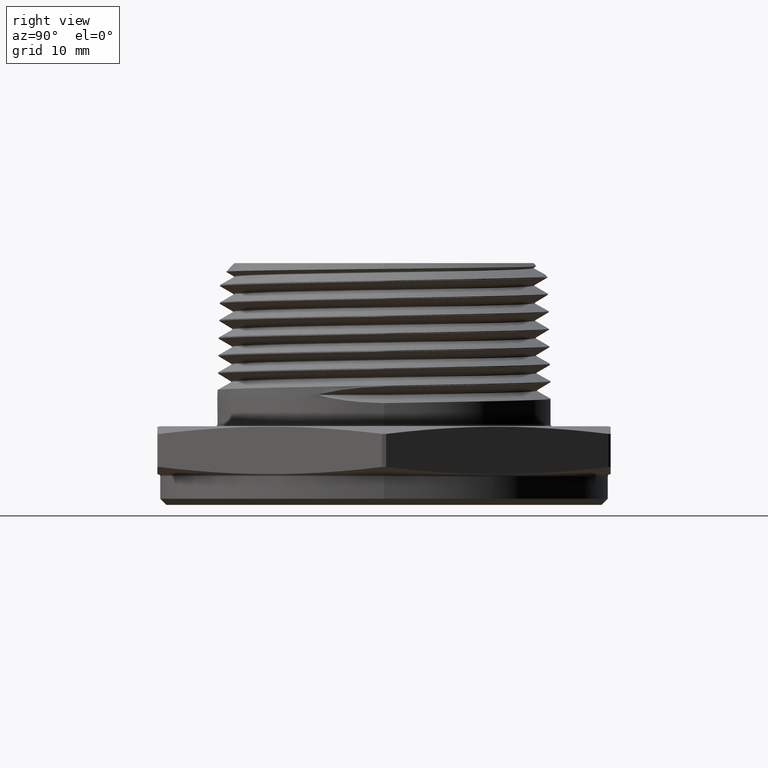
[diagram: clean part render]
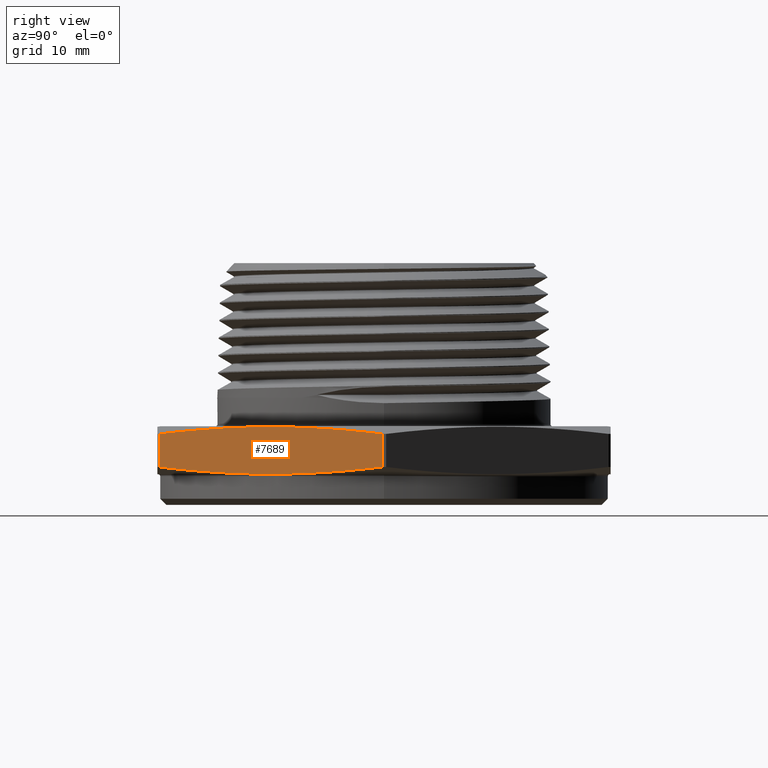
[diagram: same view with one face highlighted and labeled with its STEP entity id]
A machine part, right view. The second image highlights one B-rep face of the part: STEP entity #7689.
In plain terms, the highlighted planar face has unit normal (-0.866, 0.5, 0).
Its self-contained STEP definition (entity closure, byte-faithful):
#17 = EDGE_CURVE ( 'NONE', #270, #3393, #500, .T. ) ;
#22 = EDGE_CURVE ( 'NONE', #6987, #7709, #510, .T. ) ;
#52 = EDGE_CURVE ( 'NONE', #7709, #270, #7277, .T. ) ;
#270 = VERTEX_POINT ( 'NONE', #5706 ) ;
#401 = EDGE_LOOP ( 'NONE', ( #7348, #7381, #7365, #7374 ) ) ;
#500 = LINE ( 'NONE', #7576, #506 ) ;
#506 = VECTOR ( 'NONE', #7601, 39.37007874015748100 ) ;
#510 = LINE ( 'NONE', #7660, #514 ) ;
#514 = VECTOR ( 'NONE', #7664, 39.37007874015748100 ) ;
#3349 = FACE_OUTER_BOUND ( 'NONE', #401, .T. ) ;
#3391 = EDGE_CURVE ( 'NONE', #3393, #6987, #7256, .T. ) ;
#3393 = VERTEX_POINT ( 'NONE', #5773 ) ;
#4868 = PLANE ( 'NONE',  #7310 ) ;
#4869 = CARTESIAN_POINT ( 'NONE',  ( 0.6495190528383287800, -1.124999999999999800, 0.2399999999999999900 ) ) ;
#4876 = DIRECTION ( 'NONE',  ( -0.8660254037844386000, 0.5000000000000001100, 0.0000000000000000000 ) ) ;
#4877 = DIRECTION ( 'NONE',  ( -0.5000000000000001100, -0.8660254037844386000, 0.0000000000000000000 ) ) ;
#4939 = CARTESIAN_POINT ( 'NONE',  ( 0.6555614073276295800, -1.114534335027189200, 0.03784316758887322500 ) ) ;
#5615 = CARTESIAN_POINT ( 'NONE',  ( 0.7086809359826067300, -1.022528612522657800, 0.02671091992180336200 ) ) ;
#5617 = CARTESIAN_POINT ( 'NONE',  ( 0.7618004646375841100, -0.9305228900181261600, 0.01769192599360959100 ) ) ;
#5626 = CARTESIAN_POINT ( 'NONE',  ( 0.6555614073276295800, -1.114534335027189200, 0.03784316758887322500 ) ) ;
#5628 = CARTESIAN_POINT ( 'NONE',  ( 0.8680395219475387500, -0.7465114450090630800, 0.005381381459841983300 ) ) ;
#5629 = CARTESIAN_POINT ( 'NONE',  ( 0.9742785792574935000, -0.5625000000000002200, -0.001130250226442472400 ) ) ;
#5630 = CARTESIAN_POINT ( 'NONE',  ( 1.080517636567447800, -0.3784885549909370900, 0.005381381459841935500 ) ) ;
#5631 = CARTESIAN_POINT ( 'NONE',  ( 1.186756693877402300, -0.1944771099818740900, 0.01769192599360951500 ) ) ;
#5632 = CARTESIAN_POINT ( 'NONE',  ( 1.239876222532379400, -0.1024713874773425400, 0.02671091992180327200 ) ) ;
#5633 = CARTESIAN_POINT ( 'NONE',  ( 1.292995751187357100, -0.01046566497281097900, 0.03784316758887289900 ) ) ;
#5706 = CARTESIAN_POINT ( 'NONE',  ( 1.292995751187357100, -0.01046566497281097900, 0.03784316758887289900 ) ) ;
#5760 = CARTESIAN_POINT ( 'NONE',  ( 1.186756693877402600, -0.1944771099818739800, 0.2223080740063898000 ) ) ;
#5765 = CARTESIAN_POINT ( 'NONE',  ( 1.239876222532379800, -0.1024713874773424300, 0.2132890800781960500 ) ) ;
#5766 = CARTESIAN_POINT ( 'NONE',  ( 1.292995751187357100, -0.01046566497281097900, 0.2021568324111264500 ) ) ;
#5767 = CARTESIAN_POINT ( 'NONE',  ( 1.080517636567447800, -0.3784885549909369800, 0.2346186185401573900 ) ) ;
#5768 = CARTESIAN_POINT ( 'NONE',  ( 0.9742785792574931700, -0.5625000000000002200, 0.2411302502264419400 ) ) ;
#5769 = CARTESIAN_POINT ( 'NONE',  ( 0.8680395219475387500, -0.7465114450090630800, 0.2346186185401575000 ) ) ;
#5770 = CARTESIAN_POINT ( 'NONE',  ( 0.7618004646375841100, -0.9305228900181260500, 0.2223080740063898600 ) ) ;
#5771 = CARTESIAN_POINT ( 'NONE',  ( 0.7086809359826066200, -1.022528612522657800, 0.2132890800781961900 ) ) ;
#5772 = CARTESIAN_POINT ( 'NONE',  ( 0.6555614073276295800, -1.114534335027189200, 0.2021568324111265600 ) ) ;
#5773 = CARTESIAN_POINT ( 'NONE',  ( 1.292995751187357100, -0.01046566497281097900, 0.2021568324111264500 ) ) ;
#5809 = CARTESIAN_POINT ( 'NONE',  ( 0.6555614073276295800, -1.114534335027189200, 0.2021568324111265600 ) ) ;
#6987 = VERTEX_POINT ( 'NONE', #5809 ) ;
#7256 = B_SPLINE_CURVE_WITH_KNOTS ( 'NONE', 3,
 ( #5766, #5765, #5760, #5767, #5768, #5769, #5770, #5771, #5772 ),
 .UNSPECIFIED., .F., .F.,
 ( 4, 2, 1, 2, 4 ),
 ( 1.908587031475776200E-006, 0.008097324754050014600, 0.01619274092106855500, 0.02428815708808709400, 0.03238357325510563000 ),
 .UNSPECIFIED. ) ;
#7277 = B_SPLINE_CURVE_WITH_KNOTS ( 'NONE', 3,
 ( #5626, #5615, #5617, #5628, #5629, #5630, #5631, #5632, #5633 ),
 .UNSPECIFIED., .F., .F.,
 ( 4, 2, 1, 2, 4 ),
 ( 1.908587031598501500E-006, 0.008097324754050136100, 0.01619274092106867300, 0.02428815708808720900, 0.03238357325510574800 ),
 .UNSPECIFIED. ) ;
#7310 = AXIS2_PLACEMENT_3D ( 'NONE', #4869, #4876, #4877 ) ;
#7348 = ORIENTED_EDGE ( 'NONE', *, *, #52, .T. ) ;
#7365 = ORIENTED_EDGE ( 'NONE', *, *, #3391, .T. ) ;
#7374 = ORIENTED_EDGE ( 'NONE', *, *, #22, .T. ) ;
#7381 = ORIENTED_EDGE ( 'NONE', *, *, #17, .T. ) ;
#7576 = CARTESIAN_POINT ( 'NONE',  ( 1.292995751187357100, -0.01046566497281097900, -3.999857633734063400E-017 ) ) ;
#7601 = DIRECTION ( 'NONE',  ( 1.254986547952384500E-016, 0.0000000000000000000, 1.000000000000000000 ) ) ;
#7660 = CARTESIAN_POINT ( 'NONE',  ( 0.6555614073276295800, -1.114534335027189200, 3.999857633734063400E-017 ) ) ;
#7664 = DIRECTION ( 'NONE',  ( -1.254986547952384500E-016, -0.0000000000000000000, -1.000000000000000000 ) ) ;
#7689 = ADVANCED_FACE ( 'NONE', ( #3349 ), #4868, .F. ) ;
#7709 = VERTEX_POINT ( 'NONE', #4939 ) ;